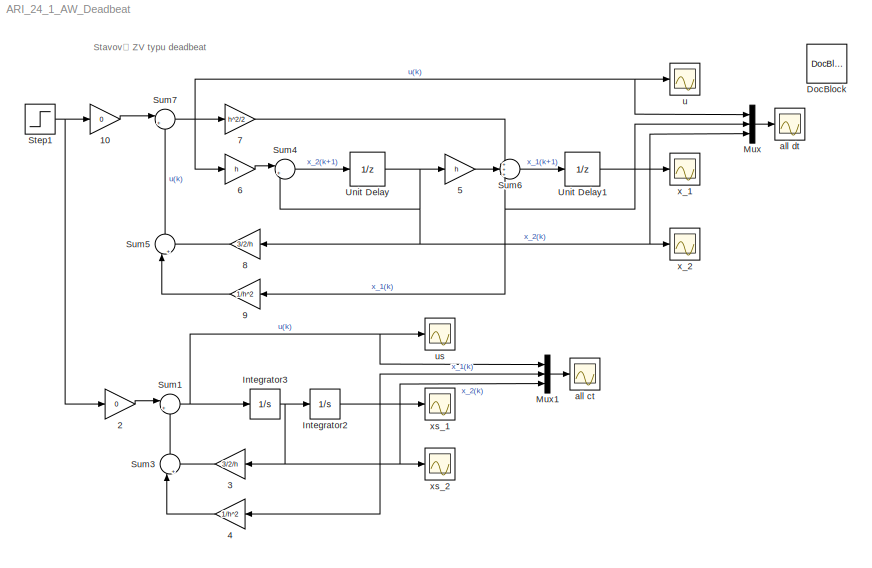
MODEL ARI_24_1_AW_Deadbeat
KIND model
BLOCK [Gain] 10
  Gain = 0
  OutDataTypeStr = Inherit: Inherit via internal rule
  ParamDataTypeStr = Inherit: Inherit via internal rule
  SID = 1
  SampleTime = h
  SaturateOnIntegerOverflow = off
BLOCK [Gain] 2
  Gain = 0
  OutDataTypeStr = Inherit: Inherit via internal rule
  ParamDataTypeStr = Inherit: Inherit via internal rule
  SID = 2
  SaturateOnIntegerOverflow = off
BLOCK [Gain] 3
  Gain = 3/2/h
  OutDataTypeStr = Inherit: Inherit via internal rule
  ParamDataTypeStr = Inherit: Inherit via internal rule
  SID = 3
  SampleTime = h
  SaturateOnIntegerOverflow = off
BLOCK [Gain] 4
  Gain = 1/h^2
  OutDataTypeStr = Inherit: Inherit via internal rule
  ParamDataTypeStr = Inherit: Inherit via internal rule
  SID = 4
  SampleTime = h
  SaturateOnIntegerOverflow = off
BLOCK [Gain] 5
  Gain = h
  OutDataTypeStr = Inherit: Inherit via internal rule
  ParamDataTypeStr = Inherit: Inherit via internal rule
  SID = 5
  SampleTime = h
  SaturateOnIntegerOverflow = off
BLOCK [Gain] 6
  Gain = h
  OutDataTypeStr = Inherit: Inherit via internal rule
  ParamDataTypeStr = Inherit: Inherit via internal rule
  SID = 6
  SampleTime = h
  SaturateOnIntegerOverflow = off
BLOCK [Gain] 7
  Gain = h^2/2
  OutDataTypeStr = Inherit: Inherit via internal rule
  ParamDataTypeStr = Inherit: Inherit via internal rule
  SID = 7
  SampleTime = h
  SaturateOnIntegerOverflow = off
BLOCK [Gain] 8
  Gain = 3/2/h
  OutDataTypeStr = Inherit: Inherit via internal rule
  ParamDataTypeStr = Inherit: Inherit via internal rule
  SID = 8
  SampleTime = h
  SaturateOnIntegerOverflow = off
BLOCK [Gain] 9
  Gain = 1/h^2
  OutDataTypeStr = Inherit: Inherit via internal rule
  ParamDataTypeStr = Inherit: Inherit via internal rule
  SID = 9
  SampleTime = h
  SaturateOnIntegerOverflow = off
BLOCK [Reference] DocBlock  REF=simulink/Model-Wide\nUtilities/DocBlock
  DocumentType = Text
  Ports = []
  SID = 29
  SourceBlock = simulink/Model-Wide\nUtilities/DocBlock
  SourceType = DocBlock
  UserData = DataTag0
  UserDataPersistent = on
BLOCK [Integrator] Integrator2
  InitialCondition = 1
  Ports = [1, 1]
  SID = 10
BLOCK [Integrator] Integrator3
  InitialCondition = 1
  Ports = [1, 1]
  SID = 11
BLOCK [Mux] Mux
  DisplayOption = bar
  Inputs = 3
  Ports = [3, 1]
  SID = 12
BLOCK [Mux] Mux1
  DisplayOption = bar
  Inputs = 3
  Ports = [3, 1]
  SID = 30
BLOCK [Step] Step1
  SID = 13
  SampleTime = 0
  Time = 0
BLOCK [Sum] Sum1
  IconShape = round
  InputSameDT = off
  Inputs = |+-
  OutDataTypeStr = Inherit: Inherit via internal rule
  Ports = [2, 1]
  SID = 14
  SaturateOnIntegerOverflow = off
BLOCK [Sum] Sum3
  IconShape = round
  InputSameDT = off
  Inputs = |++
  OutDataTypeStr = Inherit: Inherit via internal rule
  Ports = [2, 1]
  SID = 15
  SaturateOnIntegerOverflow = off
BLOCK [Sum] Sum4
  IconShape = round
  InputSameDT = off
  Inputs = |++
  OutDataTypeStr = Inherit: Inherit via internal rule
  Ports = [2, 1]
  SID = 16
  SaturateOnIntegerOverflow = off
BLOCK [Sum] Sum5
  IconShape = round
  InputSameDT = off
  Inputs = |++
  OutDataTypeStr = Inherit: Inherit via internal rule
  Ports = [2, 1]
  SID = 17
  SaturateOnIntegerOverflow = off
BLOCK [Sum] Sum6
  IconShape = round
  InputSameDT = off
  Inputs = +++
  OutDataTypeStr = Inherit: Inherit via internal rule
  Ports = [3, 1]
  SID = 18
  SaturateOnIntegerOverflow = off
BLOCK [Sum] Sum7
  IconShape = round
  InputSameDT = off
  Inputs = |+-
  OutDataTypeStr = Inherit: Inherit via internal rule
  Ports = [2, 1]
  SID = 19
  SaturateOnIntegerOverflow = off
BLOCK [UnitDelay] Unit Delay
  SID = 20
  SampleTime = h
  X0 = 1
BLOCK [UnitDelay] Unit Delay1
  SID = 21
  SampleTime = h
  X0 = 1
BLOCK [Scope] all ct
  DataFormat = StructureWithTime
  Floating = off
  NumInputPorts = 1
  Ports = [1]
  SID = 31
  SampleTime = 0
  SaveName = ScopeData7
BLOCK [Scope] all dt
  DataFormat = StructureWithTime
  Floating = off
  NumInputPorts = 1
  Ports = [1]
  SID = 22
  SampleTime = 0
  SaveName = ScopeData6
BLOCK [Scope] u
  DataFormat = StructureWithTime
  Floating = off
  NumInputPorts = 1
  Ports = [1]
  SID = 23
  SampleTime = 0
  SaveName = ScopeData4
BLOCK [Scope] us
  DataFormat = StructureWithTime
  Floating = off
  NumInputPorts = 1
  Ports = [1]
  SID = 24
  SampleTime = 0
  SaveName = ScopeData2
  TimeRange = 6
  YMax = 3
  YMin = -3
BLOCK [Scope] x_1
  DataFormat = StructureWithTime
  Floating = off
  NumInputPorts = 1
  Ports = [1]
  SID = 25
  SampleTime = 0
  SaveName = ScopeData1
BLOCK [Scope] x_2
  DataFormat = StructureWithTime
  Floating = off
  NumInputPorts = 1
  Ports = [1]
  SID = 26
  SampleTime = 0
  SaveName = ScopeData5
BLOCK [Scope] xs_1
  DataFormat = StructureWithTime
  Floating = off
  NumInputPorts = 1
  Ports = [1]
  SID = 27
  SampleTime = 0
  SaveName = ScopeData3
BLOCK [Scope] xs_2
  DataFormat = StructureWithTime
  Floating = off
  NumInputPorts = 1
  Ports = [1]
  SID = 28
  SampleTime = 0
ANNOTATION (root): Stavová ZV typu deadbeat
LINE 10:1 -> Sum7:1
LINE 2:1 -> Sum1:1
LINE 3:1 -> Sum3:2
LINE 4:1 -> Sum3:1
LINE 5:1 -> Sum6:2
LINE 6:1 -> Sum4:1
LINE 7:1 -> Sum6:1
LINE 8:1 -> Sum5:2
LINE 9:1 -> Sum5:1
NET Integrator2:1 -> 4:1, Mux1:2, xs_1:1
NET Integrator3:1 -> 3:1, Integrator2:1, Mux1:3, xs_2:1
LINE Mux1:1 -> all ct:1
LINE Mux:1 -> all dt:1
NET Step1:1 -> 10:1, 2:1
NET Sum1:1 -> Integrator3:1, Mux1:1, us:1
LINE Sum3:1 -> Sum1:2
LINE Sum4:1 -> Unit Delay:1
LINE Sum5:1 -> Sum7:2
LINE Sum6:1 -> Unit Delay1:1
NET Sum7:1 -> 6:1, 7:1, Mux:1, u:1
NET Unit Delay1:1 -> 9:1, Mux:2, Sum6:3, x_1:1
NET Unit Delay:1 -> 5:1, 8:1, Mux:3, Sum4:2, x_2:1
note: NET lines group one-source signal fan-out (src -> all destinations, sorted); 1:1 wires keep LINE
